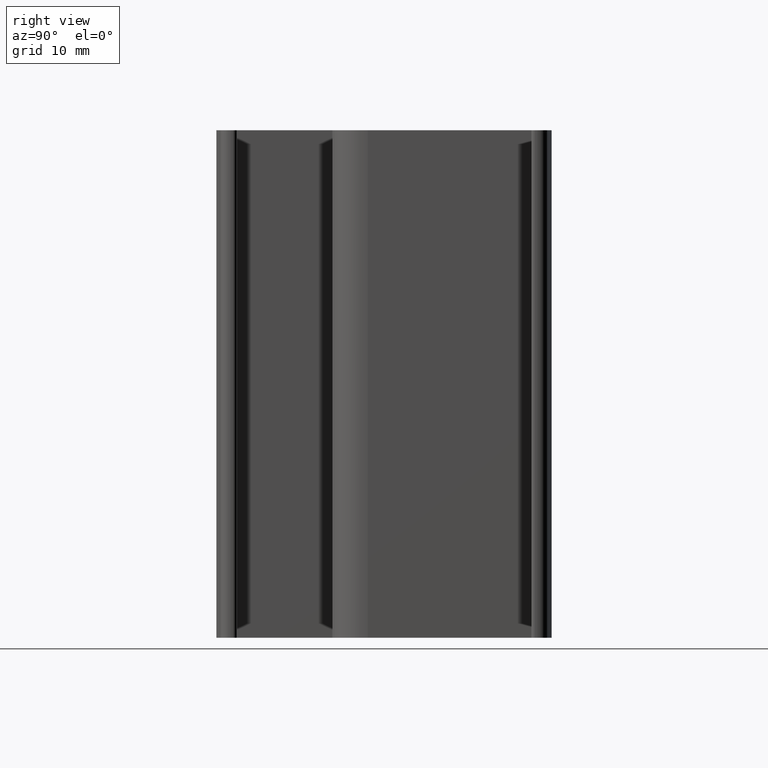
[diagram: clean part render]
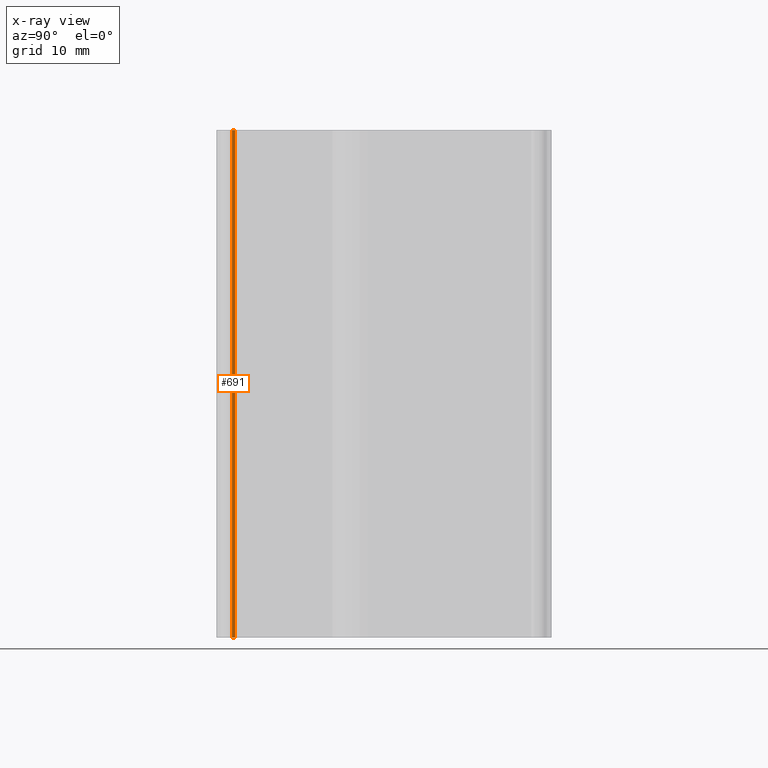
[diagram: x-ray — body ghosted, one internal face saturated and labeled with its STEP entity id]
A machine part, right view, then the same camera in x-ray: the body is ghosted and one INTERNAL B-rep face — a face not visible from any outside direction — is saturated and labeled: STEP entity #691.
In plain terms, the highlighted planar face has unit normal (-1, 0, 0).
Its self-contained STEP definition (entity closure, byte-faithful):
#42 = AXIS2_PLACEMENT_3D ( 'NONE', #676, #455, #1177 ) ;
#52 = EDGE_CURVE ( 'NONE', #473, #107, #890, .T. ) ;
#68 = PLANE ( 'NONE',  #42 ) ;
#107 = VERTEX_POINT ( 'NONE', #1297 ) ;
#122 = DIRECTION ( 'NONE',  ( -0.0000000000000000000, -1.000000000000000000, -0.0000000000000000000 ) ) ;
#185 = ORIENTED_EDGE ( 'NONE', *, *, #1299, .F. ) ;
#196 = CARTESIAN_POINT ( 'NONE',  ( 9.998582732943498600, -0.08271038590107278300, 50.00000000000000000 ) ) ;
#233 = VECTOR ( 'NONE', #1092, 1000.000000000000000 ) ;
#340 = DIRECTION ( 'NONE',  ( -0.0000000000000000000, -0.0000000000000000000, 1.000000000000000000 ) ) ;
#366 = CARTESIAN_POINT ( 'NONE',  ( 9.998582732943498600, 0.2173604941944235200, 50.00000000000000000 ) ) ;
#442 = EDGE_LOOP ( 'NONE', ( #881, #185, #928, #714 ) ) ;
#455 = DIRECTION ( 'NONE',  ( -1.000000000000000000, 0.0000000000000000000, 0.0000000000000000000 ) ) ;
#473 = VERTEX_POINT ( 'NONE', #680 ) ;
#567 = VERTEX_POINT ( 'NONE', #366 ) ;
#597 = VECTOR ( 'NONE', #762, 1000.000000000000000 ) ;
#620 = EDGE_CURVE ( 'NONE', #567, #821, #1087, .T. ) ;
#644 = CARTESIAN_POINT ( 'NONE',  ( 9.998582732943498600, -0.08271038590107278300, 0.0000000000000000000 ) ) ;
#676 = CARTESIAN_POINT ( 'NONE',  ( 9.998582732943498600, -0.08271038590107278300, 0.0000000000000000000 ) ) ;
#680 = CARTESIAN_POINT ( 'NONE',  ( 9.998582732943498600, 0.2173604941944235200, 0.0000000000000000000 ) ) ;
#691 = ADVANCED_FACE ( 'NONE', ( #735 ), #68, .F. ) ;
#714 = ORIENTED_EDGE ( 'NONE', *, *, #774, .T. ) ;
#734 = LINE ( 'NONE', #1220, #233 ) ;
#735 = FACE_OUTER_BOUND ( 'NONE', #442, .T. ) ;
#762 = DIRECTION ( 'NONE',  ( -0.0000000000000000000, -1.000000000000000000, -0.0000000000000000000 ) ) ;
#774 = EDGE_CURVE ( 'NONE', #473, #567, #1216, .T. ) ;
#809 = VECTOR ( 'NONE', #122, 1000.000000000000000 ) ;
#821 = VERTEX_POINT ( 'NONE', #829 ) ;
#829 = CARTESIAN_POINT ( 'NONE',  ( 9.998582732943498600, -0.08271038590107278300, 50.00000000000000000 ) ) ;
#881 = ORIENTED_EDGE ( 'NONE', *, *, #620, .T. ) ;
#890 = LINE ( 'NONE', #644, #597 ) ;
#928 = ORIENTED_EDGE ( 'NONE', *, *, #52, .F. ) ;
#1027 = CARTESIAN_POINT ( 'NONE',  ( 9.998582732943498600, 0.2173604941944235200, 0.0000000000000000000 ) ) ;
#1087 = LINE ( 'NONE', #196, #809 ) ;
#1092 = DIRECTION ( 'NONE',  ( -0.0000000000000000000, -0.0000000000000000000, 1.000000000000000000 ) ) ;
#1177 = DIRECTION ( 'NONE',  ( 0.0000000000000000000, 0.0000000000000000000, 1.000000000000000000 ) ) ;
#1186 = VECTOR ( 'NONE', #340, 1000.000000000000000 ) ;
#1216 = LINE ( 'NONE', #1027, #1186 ) ;
#1220 = CARTESIAN_POINT ( 'NONE',  ( 9.998582732943498600, -0.08271038590107278300, 0.0000000000000000000 ) ) ;
#1297 = CARTESIAN_POINT ( 'NONE',  ( 9.998582732943498600, -0.08271038590107278300, 0.0000000000000000000 ) ) ;
#1299 = EDGE_CURVE ( 'NONE', #107, #821, #734, .T. ) ;